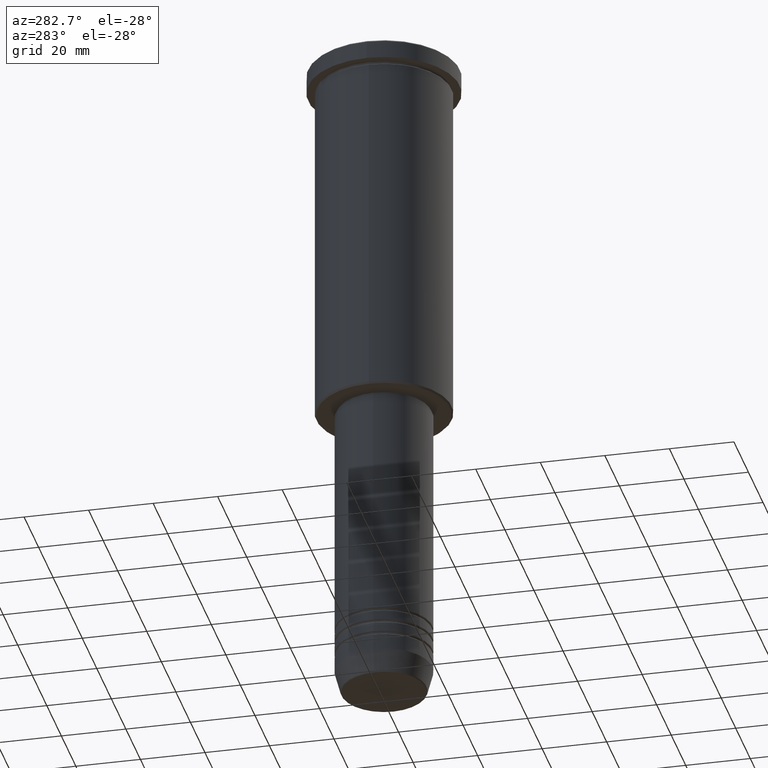
[diagram: clean part render]
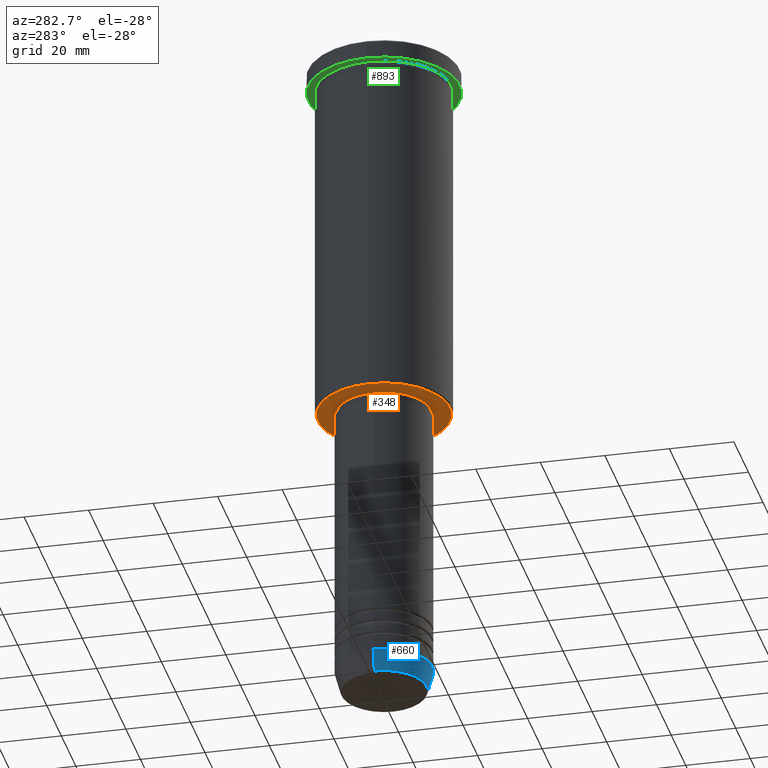
[diagram: same view with three faces highlighted in distinct colors, each labeled with its STEP entity id]
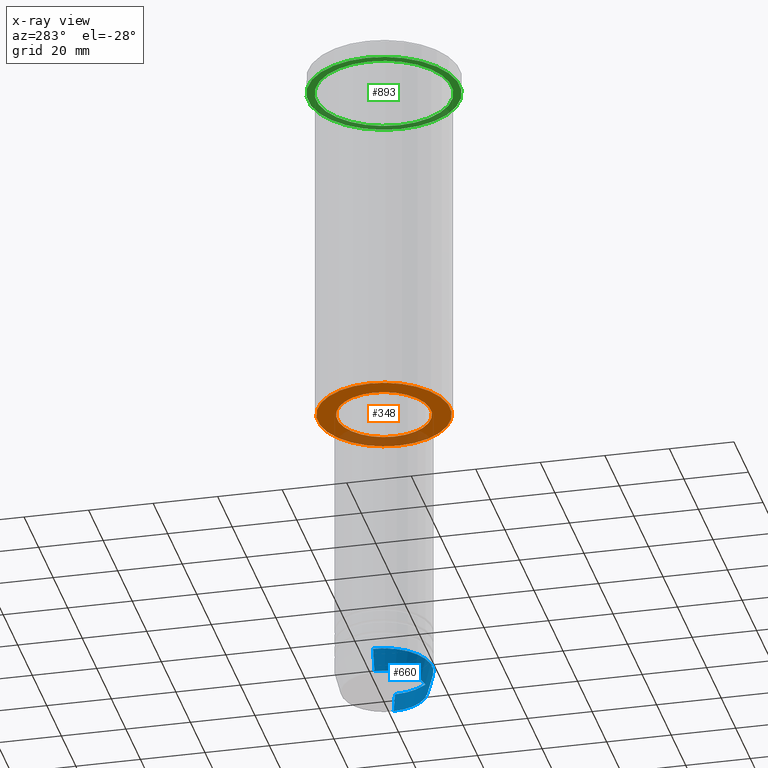
[diagram: x-ray of the same camera — body ghosted, the three highlighted faces saturated]
A machine part, auxiliary view with three faces highlighted in distinct colors.
The next image is the same camera in x-ray (body ghosted, the three faces saturated) — at least one of them is partly hidden behind the body in this view.
Their STEP definitions:

[orange] entity #348 — the highlighted planar face has unit normal (0, 0, -1).
#45 = CARTESIAN_POINT ( 'NONE',  ( -14.49999999999999822, 1.775737858763662015E-15, -116.0000000000000142 ) ) ;
#72 = CIRCLE ( 'NONE', #416, 20.50000000000001776 ) ;
#81 = VERTEX_POINT ( 'NONE', #691 ) ;
#94 = ORIENTED_EDGE ( 'NONE', *, *, #913, .T. ) ;
#160 = EDGE_CURVE ( 'NONE', #595, #81, #1137, .T. ) ;
#161 = VERTEX_POINT ( 'NONE', #887 ) ;
#167 = DIRECTION ( 'NONE',  ( 0.000000000000000000, 0.000000000000000000, -1.000000000000000000 ) ) ;
#186 = AXIS2_PLACEMENT_3D ( 'NONE', #547, #365, #849 ) ;
#250 = DIRECTION ( 'NONE',  ( -0.000000000000000000, -0.000000000000000000, 1.000000000000000000 ) ) ;
#267 = CARTESIAN_POINT ( 'NONE',  ( 0.000000000000000000, 0.000000000000000000, -116.0000000000000142 ) ) ;
#306 = FACE_BOUND ( 'NONE', #696, .T. ) ;
#348 = ADVANCED_FACE ( 'NONE', ( #865, #306 ), #1023, .T. ) ;
#365 = DIRECTION ( 'NONE',  ( 0.000000000000000000, 0.000000000000000000, -1.000000000000000000 ) ) ;
#385 = DIRECTION ( 'NONE',  ( 0.000000000000000000, 0.000000000000000000, -1.000000000000000000 ) ) ;
#386 = CARTESIAN_POINT ( 'NONE',  ( 0.000000000000000000, 0.000000000000000000, -116.0000000000000142 ) ) ;
#416 = AXIS2_PLACEMENT_3D ( 'NONE', #267, #167, #632 ) ;
#464 = DIRECTION ( 'NONE',  ( 1.000000000000000000, 0.000000000000000000, 0.000000000000000000 ) ) ;
#494 = CIRCLE ( 'NONE', #805, 14.49999999999999822 ) ;
#510 = AXIS2_PLACEMENT_3D ( 'NONE', #1045, #250, #518 ) ;
#518 = DIRECTION ( 'NONE',  ( 1.000000000000000000, 0.000000000000000000, 0.000000000000000000 ) ) ;
#547 = CARTESIAN_POINT ( 'NONE',  ( 0.000000000000000000, 0.000000000000000000, -116.0000000000000142 ) ) ;
#595 = VERTEX_POINT ( 'NONE', #45 ) ;
#610 = ORIENTED_EDGE ( 'NONE', *, *, #652, .T. ) ;
#632 = DIRECTION ( 'NONE',  ( -1.000000000000000000, 0.000000000000000000, 0.000000000000000000 ) ) ;
#652 = EDGE_CURVE ( 'NONE', #675, #161, #72, .T. ) ;
#666 = DIRECTION ( 'NONE',  ( -0.000000000000000000, -0.000000000000000000, 1.000000000000000000 ) ) ;
#673 = CARTESIAN_POINT ( 'NONE',  ( 0.000000000000000000, 21.00000000000000000, -116.0000000000000142 ) ) ;
#675 = VERTEX_POINT ( 'NONE', #1176 ) ;
#691 = CARTESIAN_POINT ( 'NONE',  ( 14.49999999999999822, 0.000000000000000000, -116.0000000000000142 ) ) ;
#696 = EDGE_LOOP ( 'NONE', ( #94, #1056 ) ) ;
#729 = ORIENTED_EDGE ( 'NONE', *, *, #949, .T. ) ;
#769 = DIRECTION ( 'NONE',  ( -1.000000000000000000, 0.000000000000000000, -0.000000000000000000 ) ) ;
#802 = AXIS2_PLACEMENT_3D ( 'NONE', #673, #385, #769 ) ;
#805 = AXIS2_PLACEMENT_3D ( 'NONE', #386, #666, #464 ) ;
#849 = DIRECTION ( 'NONE',  ( -1.000000000000000000, 0.000000000000000000, 0.000000000000000000 ) ) ;
#865 = FACE_OUTER_BOUND ( 'NONE', #1155, .T. ) ;
#887 = CARTESIAN_POINT ( 'NONE',  ( 20.50000000000001776, 0.000000000000000000, -116.0000000000000142 ) ) ;
#913 = EDGE_CURVE ( 'NONE', #81, #595, #494, .T. ) ;
#949 = EDGE_CURVE ( 'NONE', #161, #675, #1103, .T. ) ;
#1023 = PLANE ( 'NONE',  #802 ) ;
#1045 = CARTESIAN_POINT ( 'NONE',  ( 0.000000000000000000, 0.000000000000000000, -116.0000000000000142 ) ) ;
#1056 = ORIENTED_EDGE ( 'NONE', *, *, #160, .T. ) ;
#1103 = CIRCLE ( 'NONE', #186, 20.50000000000001776 ) ;
#1137 = CIRCLE ( 'NONE', #510, 14.49999999999999822 ) ;
#1155 = EDGE_LOOP ( 'NONE', ( #729, #610 ) ) ;
#1176 = CARTESIAN_POINT ( 'NONE',  ( -20.50000000000001776, 2.541142108230759057E-15, -116.0000000000000142 ) ) ;

[blue] entity #660 — the highlighted conical surface has half-angle 15 deg.
#30 = CARTESIAN_POINT ( 'NONE',  ( 0.000000000000000000, 0.000000000000000000, -210.6294095225512706 ) ) ;
#63 = CARTESIAN_POINT ( 'NONE',  ( -15.00000000000000000, 1.836970198721029589E-15, -204.0000000000000284 ) ) ;
#74 = CARTESIAN_POINT ( 'NONE',  ( 0.000000000000000000, 0.000000000000000000, -204.0000000000000284 ) ) ;
#82 = DIRECTION ( 'NONE',  ( -0.000000000000000000, -0.000000000000000000, 1.000000000000000000 ) ) ;
#85 = VERTEX_POINT ( 'NONE', #806 ) ;
#87 = CIRCLE ( 'NONE', #106, 15.00000000000000000 ) ;
#106 = AXIS2_PLACEMENT_3D ( 'NONE', #625, #279, #273 ) ;
#127 = AXIS2_PLACEMENT_3D ( 'NONE', #30, #1018, #468 ) ;
#148 = AXIS2_PLACEMENT_3D ( 'NONE', #74, #82, #171 ) ;
#171 = DIRECTION ( 'NONE',  ( 1.000000000000000000, 0.000000000000000000, 0.000000000000000000 ) ) ;
#190 = VERTEX_POINT ( 'NONE', #1093 ) ;
#216 = EDGE_CURVE ( 'NONE', #483, #85, #87, .T. ) ;
#273 = DIRECTION ( 'NONE',  ( 1.000000000000000000, 0.000000000000000000, 0.000000000000000000 ) ) ;
#279 = DIRECTION ( 'NONE',  ( -0.000000000000000000, -0.000000000000000000, 1.000000000000000000 ) ) ;
#352 = FACE_OUTER_BOUND ( 'NONE', #600, .T. ) ;
#353 = LINE ( 'NONE', #566, #458 ) ;
#361 = EDGE_CURVE ( 'NONE', #423, #190, #455, .T. ) ;
#378 = VECTOR ( 'NONE', #1073, 1000.000000000000000 ) ;
#381 = ORIENTED_EDGE ( 'NONE', *, *, #361, .T. ) ;
#420 = CARTESIAN_POINT ( 'NONE',  ( -15.00000000000000000, 1.836970198721029589E-15, -204.0000000000000284 ) ) ;
#423 = VERTEX_POINT ( 'NONE', #495 ) ;
#455 = CIRCLE ( 'NONE', #127, 13.22365507213719482 ) ;
#458 = VECTOR ( 'NONE', #467, 1000.000000000000000 ) ;
#467 = DIRECTION ( 'NONE',  ( 0.2588190451025213501, 0.000000000000000000, 0.9659258262890680902 ) ) ;
#468 = DIRECTION ( 'NONE',  ( 1.000000000000000000, 0.000000000000000000, 0.000000000000000000 ) ) ;
#483 = VERTEX_POINT ( 'NONE', #420 ) ;
#495 = CARTESIAN_POINT ( 'NONE',  ( -13.22365507213719660, 1.728200442216588780E-15, -210.6294095225512706 ) ) ;
#566 = CARTESIAN_POINT ( 'NONE',  ( 15.00000000000000000, 0.000000000000000000, -204.0000000000000284 ) ) ;
#600 = EDGE_LOOP ( 'NONE', ( #919, #381, #634, #1138 ) ) ;
#625 = CARTESIAN_POINT ( 'NONE',  ( 0.000000000000000000, 0.000000000000000000, -204.0000000000000284 ) ) ;
#629 = CONICAL_SURFACE ( 'NONE', #148, 15.00000000000000000, 0.2617993877991500740 ) ;
#634 = ORIENTED_EDGE ( 'NONE', *, *, #1122, .T. ) ;
#660 = ADVANCED_FACE ( 'NONE', ( #352 ), #629, .T. ) ;
#719 = LINE ( 'NONE', #63, #378 ) ;
#806 = CARTESIAN_POINT ( 'NONE',  ( 15.00000000000000000, 0.000000000000000000, -204.0000000000000284 ) ) ;
#919 = ORIENTED_EDGE ( 'NONE', *, *, #1068, .F. ) ;
#1018 = DIRECTION ( 'NONE',  ( -0.000000000000000000, -0.000000000000000000, 1.000000000000000000 ) ) ;
#1068 = EDGE_CURVE ( 'NONE', #423, #483, #719, .T. ) ;
#1073 = DIRECTION ( 'NONE',  ( -0.2588190451025213501, 3.169619151431772337E-17, 0.9659258262890680902 ) ) ;
#1093 = CARTESIAN_POINT ( 'NONE',  ( 13.22365507213719482, 0.000000000000000000, -210.6294095225512706 ) ) ;
#1122 = EDGE_CURVE ( 'NONE', #190, #85, #353, .T. ) ;
#1138 = ORIENTED_EDGE ( 'NONE', *, *, #216, .F. ) ;

[green] entity #893 — the highlighted planar face has unit normal (0, 0, -1).
#54 = CARTESIAN_POINT ( 'NONE',  ( 0.000000000000000000, 23.50000000000000000, -5.999999999999993783 ) ) ;
#55 = CIRCLE ( 'NONE', #728, 21.00000000000000000 ) ;
#97 = CARTESIAN_POINT ( 'NONE',  ( 23.50000000000000000, 0.000000000000000000, -5.999999999999993783 ) ) ;
#114 = EDGE_CURVE ( 'NONE', #1031, #282, #970, .T. ) ;
#122 = EDGE_LOOP ( 'NONE', ( #1175, #1034 ) ) ;
#125 = AXIS2_PLACEMENT_3D ( 'NONE', #594, #1165, #1070 ) ;
#154 = CARTESIAN_POINT ( 'NONE',  ( 0.000000000000000000, 0.000000000000000000, -5.999999999999993783 ) ) ;
#170 = EDGE_CURVE ( 'NONE', #257, #649, #1004, .T. ) ;
#257 = VERTEX_POINT ( 'NONE', #725 ) ;
#274 = DIRECTION ( 'NONE',  ( -1.000000000000000000, 0.000000000000000000, 0.000000000000000000 ) ) ;
#282 = VERTEX_POINT ( 'NONE', #97 ) ;
#315 = DIRECTION ( 'NONE',  ( 1.000000000000000000, 0.000000000000000000, 0.000000000000000000 ) ) ;
#394 = AXIS2_PLACEMENT_3D ( 'NONE', #154, #1135, #315 ) ;
#419 = DIRECTION ( 'NONE',  ( 0.000000000000000000, 0.000000000000000000, -1.000000000000000000 ) ) ;
#469 = ORIENTED_EDGE ( 'NONE', *, *, #602, .F. ) ;
#520 = DIRECTION ( 'NONE',  ( -0.000000000000000000, -0.000000000000000000, 1.000000000000000000 ) ) ;
#530 = DIRECTION ( 'NONE',  ( -0.000000000000000000, -0.000000000000000000, 1.000000000000000000 ) ) ;
#594 = CARTESIAN_POINT ( 'NONE',  ( 0.000000000000000000, 0.000000000000000000, -5.999999999999993783 ) ) ;
#602 = EDGE_CURVE ( 'NONE', #282, #1031, #915, .T. ) ;
#615 = DIRECTION ( 'NONE',  ( -1.000000000000000000, 0.000000000000000000, 0.000000000000000000 ) ) ;
#649 = VERTEX_POINT ( 'NONE', #906 ) ;
#693 = FACE_OUTER_BOUND ( 'NONE', #789, .T. ) ;
#725 = CARTESIAN_POINT ( 'NONE',  ( -21.00000000000000000, 0.000000000000000000, -5.999999999999992895 ) ) ;
#728 = AXIS2_PLACEMENT_3D ( 'NONE', #790, #520, #274 ) ;
#788 = CARTESIAN_POINT ( 'NONE',  ( 0.000000000000000000, 0.000000000000000000, -5.999999999999993783 ) ) ;
#789 = EDGE_LOOP ( 'NONE', ( #469, #1183 ) ) ;
#790 = CARTESIAN_POINT ( 'NONE',  ( 0.000000000000000000, 0.000000000000000000, -5.999999999999993783 ) ) ;
#795 = DIRECTION ( 'NONE',  ( -1.000000000000000000, 0.000000000000000000, -0.000000000000000000 ) ) ;
#809 = EDGE_CURVE ( 'NONE', #649, #257, #55, .T. ) ;
#893 = ADVANCED_FACE ( 'NONE', ( #1140, #693 ), #1047, .T. ) ;
#906 = CARTESIAN_POINT ( 'NONE',  ( 21.00000000000000000, 2.571758278209441661E-15, -5.999999999999992895 ) ) ;
#915 = CIRCLE ( 'NONE', #394, 23.50000000000000000 ) ;
#925 = CARTESIAN_POINT ( 'NONE',  ( -23.50000000000000000, 2.877919977996280320E-15, -5.999999999999993783 ) ) ;
#968 = AXIS2_PLACEMENT_3D ( 'NONE', #788, #530, #615 ) ;
#970 = CIRCLE ( 'NONE', #125, 23.50000000000000000 ) ;
#1004 = CIRCLE ( 'NONE', #968, 21.00000000000000000 ) ;
#1031 = VERTEX_POINT ( 'NONE', #925 ) ;
#1034 = ORIENTED_EDGE ( 'NONE', *, *, #809, .T. ) ;
#1047 = PLANE ( 'NONE',  #1061 ) ;
#1061 = AXIS2_PLACEMENT_3D ( 'NONE', #54, #419, #795 ) ;
#1070 = DIRECTION ( 'NONE',  ( 1.000000000000000000, 0.000000000000000000, 0.000000000000000000 ) ) ;
#1135 = DIRECTION ( 'NONE',  ( -0.000000000000000000, -0.000000000000000000, 1.000000000000000000 ) ) ;
#1140 = FACE_BOUND ( 'NONE', #122, .T. ) ;
#1165 = DIRECTION ( 'NONE',  ( -0.000000000000000000, -0.000000000000000000, 1.000000000000000000 ) ) ;
#1175 = ORIENTED_EDGE ( 'NONE', *, *, #170, .T. ) ;
#1183 = ORIENTED_EDGE ( 'NONE', *, *, #114, .F. ) ;